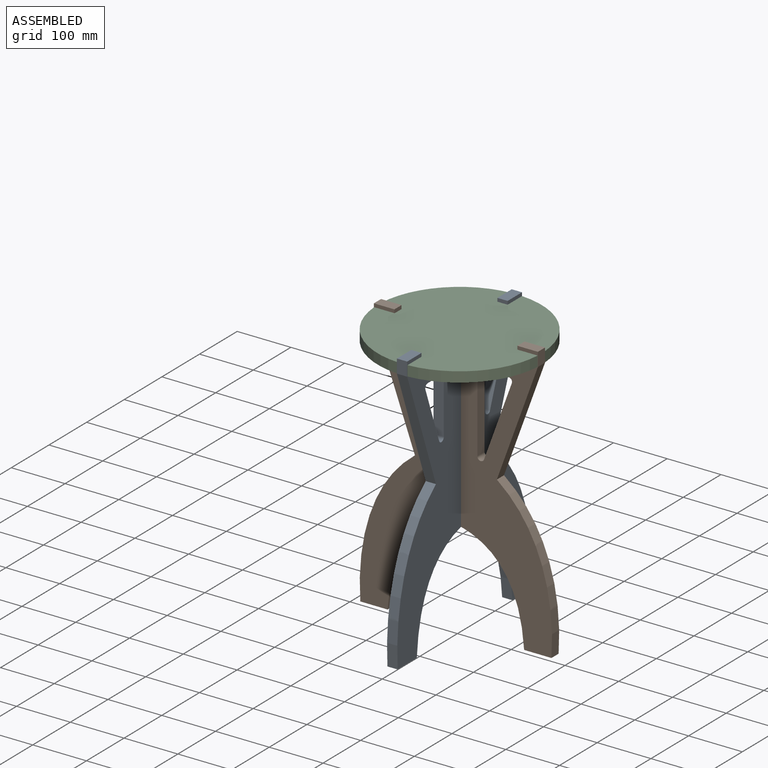
[diagram: assembled view]
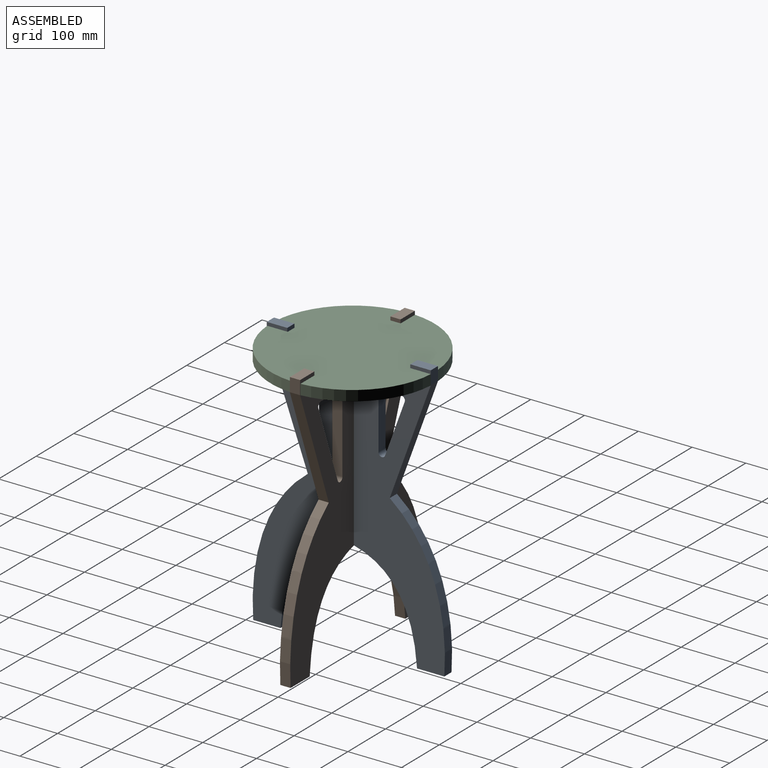
[diagram: assembled view, second angle]
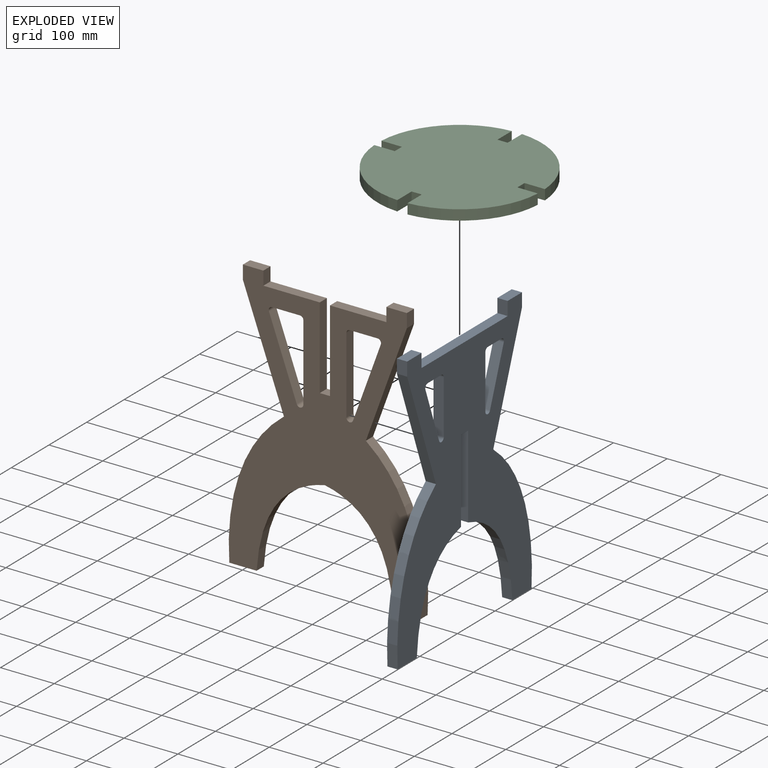
[diagram: exploded view]
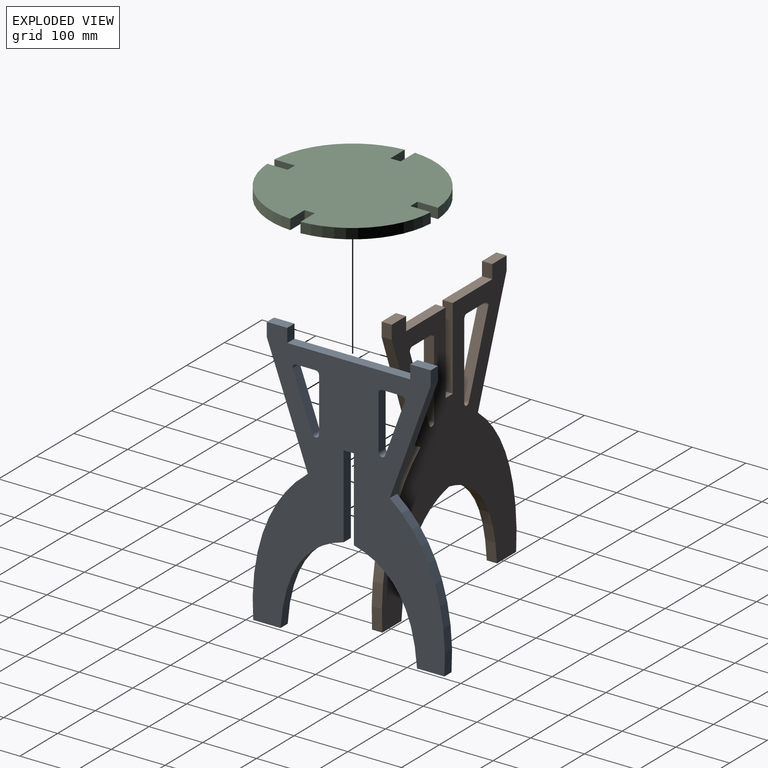
[diagram: exploded view, second angle]
ASSEMBLY  parts=3 mates=7
PART A: 32 faces, bbox 365.1x19.1x508 mm
  f0: plane 508x365.1mm, normal (0,-1,0), area 89085.1mm2, adj f2,f3,f4,f5,f6,f7,f8,f9
  f1: plane 508x365.1mm, normal (0,1,0), area 89085.1mm2, adj f2,f3,f4,f5,f6,f7,f8,f9
  f2: plane 228.85x19.05mm, normal (0,0,1), area 4359.7mm2, adj f0,f1,f3,f19
  f3: plane 25.4x19.05mm, normal (1,0,0), area 483.9mm2, adj f0,f1,f2,f4
  f4: plane 38.1x19.05mm, normal (0,0,1), area 725.8mm2, adj f0,f1,f3,f5
  f5: plane 25.4x19.05mm, normal (-1,0,0), area 483.9mm2, adj f0,f1,f4,f6
  f6: plane 209.71x76.33mm, normal (-0.94,0,-0.34), area 4251.3mm2, adj f0,f1,f5,f7
  f7: extruded ~272.89x102.68mm, area 5776.1mm2, adj f0,f1,f6,f8
  f8: plane 50.8x19.05mm, normal (0,0,-1), area 967.7mm2, adj f0,f1,f7,f9
  f9: extruded ~175.65x117.48mm, area 4340mm2, adj f0,f1,f8,f10
  f10: plane 154.55x19.05mm, normal (1,0,0), area 2944.1mm2, adj f0,f1,f9,f11
  f11: plane 19.05x19.05mm, normal (0,0,-1), area 362.9mm2, adj f0,f1,f10,f12
  f12: plane 154.55x19.05mm, normal (-1,0,0), area 2944.1mm2, adj f0,f1,f11,f13
  f13: extruded ~175.65x117.48mm, area 4340mm2, adj f0,f1,f12,f14
  f14: plane 50.8x19.05mm, normal (0,0,-1), area 967.7mm2, adj f0,f1,f13,f15
  f15: extruded ~272.89x102.68mm, area 5776.1mm2, adj f0,f1,f14,f16
  f16: plane 209.71x76.33mm, normal (0.94,0,-0.34), area 4251.3mm2, adj f0,f1,f15,f17
  f17: plane 25.4x19.05mm, normal (1,0,0), area 483.9mm2, adj f0,f1,f16,f18
  f18: plane 38.1x19.05mm, normal (0,0,1), area 725.8mm2, adj f0,f1,f17,f19
  f19: plane 25.4x19.05mm, normal (-1,0,0), area 483.9mm2, adj f0,f1,f2,f18
  f20: plane 100.32x36.52mm, normal (-0.94,0,0.34), area 2033.8mm2, adj f0,f1,f21,f25
  f21: cylinder r=6.35mm len=19.05mm, axis (0,-1,0), area 232.2mm2, adj f0,f1,f20,f22
  f22: plane 36.52x19.05mm, normal (0,0,-1), area 695.6mm2, adj f0,f1,f21,f23
  f23: cylinder r=6.35mm len=19.05mm, axis (0,-1,0), area 190mm2, adj f0,f1,f22,f24
  f24: plane 100.32x19.05mm, normal (1,0,0), area 1911.2mm2, adj f0,f1,f23,f25
  f25: cylinder r=6.35mm len=19.05mm, axis (0,-1,0), area 337.8mm2, adj f0,f1,f20,f24
  f26: plane 100.32x19.05mm, normal (-1,0,0), area 1911.2mm2, adj f0,f1,f27,f31
  f27: cylinder r=6.35mm len=19.05mm, axis (0,-1,0), area 190mm2, adj f0,f1,f26,f28
  f28: plane 36.52x19.05mm, normal (0,0,-1), area 695.6mm2, adj f0,f1,f27,f29
  f29: cylinder r=6.35mm len=19.05mm, axis (0,-1,0), area 232.2mm2, adj f0,f1,f28,f30
  f30: plane 100.32x36.52mm, normal (0.94,0,0.34), area 2033.8mm2, adj f0,f1,f29,f31
  f31: cylinder r=6.35mm len=19.05mm, axis (0,-1,0), area 337.8mm2, adj f0,f1,f26,f30
PART B: 33 faces, bbox 365.1x19.1x508 mm
  f0: plane 508x365.1mm, normal (0,-1,0), area 84115.8mm2, adj f2,f3,f4,f5,f6,f7,f8,f9
  f1: plane 508x365.1mm, normal (0,1,0), area 84115.8mm2, adj f2,f3,f4,f5,f6,f7,f8,f9
  f2: plane 152.4x19.05mm, normal (1,0,0), area 2903.2mm2, adj f0,f1,f3,f20
  f3: plane 104.9x19.05mm, normal (0,0,1), area 1998.4mm2, adj f0,f1,f2,f4
  f4: plane 25.4x19.05mm, normal (1,0,0), area 483.9mm2, adj f0,f1,f3,f5
  f5: plane 38.1x19.05mm, normal (0,0,1), area 725.8mm2, adj f0,f1,f4,f6
  f6: plane 25.4x19.05mm, normal (-1,0,0), area 483.9mm2, adj f0,f1,f5,f7
  f7: plane 209.71x76.33mm, normal (-0.94,0,-0.34), area 4251.3mm2, adj f0,f1,f6,f8
  f8: extruded ~272.89x102.68mm, area 5776.1mm2, adj f0,f1,f7,f9
  f9: plane 50.8x19.05mm, normal (0,0,-1), area 967.7mm2, adj f0,f1,f8,f10
  f10: extruded ~177.8x127mm, area 4526mm2, adj f0,f1,f9,f11
  f11: extruded ~177.8x127mm, area 4526mm2, adj f0,f1,f10,f12
  f12: plane 50.8x19.05mm, normal (0,0,-1), area 967.7mm2, adj f0,f1,f11,f13
  f13: extruded ~272.89x102.68mm, area 5776.1mm2, adj f0,f1,f12,f14
  f14: plane 209.71x76.33mm, normal (0.94,0,-0.34), area 4251.3mm2, adj f0,f1,f13,f15
  f15: plane 25.4x19.05mm, normal (1,0,0), area 483.9mm2, adj f0,f1,f14,f16
  f16: plane 38.1x19.05mm, normal (0,0,1), area 725.8mm2, adj f0,f1,f15,f17
  f17: plane 25.4x19.05mm, normal (-1,0,0), area 483.9mm2, adj f0,f1,f16,f18
  f18: plane 104.9x19.05mm, normal (0,0,1), area 1998.4mm2, adj f0,f1,f17,f19
  f19: plane 152.4x19.05mm, normal (-1,0,0), area 2903.2mm2, adj f0,f1,f18,f20
  f20: plane 19.05x19.05mm, normal (0,0,1), area 362.9mm2, adj f0,f1,f2,f19
  f21: plane 142.21x51.76mm, normal (-0.94,0,0.34), area 2882.9mm2, adj f0,f1,f22,f26
  f22: cylinder r=6.35mm len=19.05mm, axis (0,-1,0), area 232.2mm2, adj f0,f1,f21,f23
  f23: plane 51.76x19.05mm, normal (0,0,-1), area 986mm2, adj f0,f1,f22,f24
  f24: cylinder r=6.35mm len=19.05mm, axis (0,-1,0), area 190mm2, adj f0,f1,f23,f25
  f25: plane 142.21x19.05mm, normal (1,0,0), area 2709.1mm2, adj f0,f1,f24,f26
  f26: cylinder r=6.35mm len=19.05mm, axis (0,-1,0), area 337.8mm2, adj f0,f1,f21,f25
  f27: plane 142.21x19.05mm, normal (-1,0,0), area 2709.1mm2, adj f0,f1,f28,f32
  f28: cylinder r=6.35mm len=19.05mm, axis (0,-1,0), area 190mm2, adj f0,f1,f27,f29
  f29: plane 51.76x19.05mm, normal (0,0,-1), area 986mm2, adj f0,f1,f28,f30
  f30: cylinder r=6.35mm len=19.05mm, axis (0,-1,0), area 232.2mm2, adj f0,f1,f29,f31
  f31: plane 142.21x51.76mm, normal (0.94,0,0.34), area 2882.9mm2, adj f0,f1,f30,f32
  f32: cylinder r=6.35mm len=19.05mm, axis (0,-1,0), area 337.8mm2, adj f0,f1,f27,f31
PART C: 18 faces, bbox 304.2x304.2x19.1 mm
  f0: cylinder r=152.4mm len=142.58mm, axis (0,0,-1), area 4197.2mm2, adj f4,f5,f13,f17
  f1: cylinder r=152.4mm len=142.58mm, axis (0,0,-1), area 4197.2mm2, adj f4,f5,f10,f14
  f2: cylinder r=152.4mm len=142.58mm, axis (0,0,-1), area 4197.2mm2, adj f4,f5,f7,f11
  f3: cylinder r=152.4mm len=142.58mm, axis (0,0,-1), area 4197.2mm2, adj f4,f5,f8,f16
  f4: plane 304.2x304.2mm, normal (0,0,1), area 70047.5mm2, adj f0,f1,f2,f3,f6,f7,f8,f9
  f5: plane 304.2x304.2mm, normal (0,0,-1), area 70047.5mm2, adj f0,f1,f2,f3,f6,f7,f8,f9
  f6: plane 19.05x19.05mm, normal (1,0,0), area 362.9mm2, adj f4,f5,f7,f8
  f7: plane 38.1x19.05mm, normal (0,-1,0), area 725.8mm2, adj f2,f4,f5,f6
  f8: plane 38.1x19.05mm, normal (0,1,0), area 725.8mm2, adj f3,f4,f5,f6
  f9: plane 19.05x19.05mm, normal (0,1,0), area 362.9mm2, adj f4,f5,f10,f11
  f10: plane 38.1x19.05mm, normal (1,0,0), area 725.8mm2, adj f1,f4,f5,f9
  f11: plane 38.1x19.05mm, normal (-1,0,0), area 725.8mm2, adj f2,f4,f5,f9
  f12: plane 19.05x19.05mm, normal (-1,0,0), area 362.9mm2, adj f4,f5,f13,f14
  f13: plane 38.1x19.05mm, normal (0,1,0), area 725.8mm2, adj f0,f4,f5,f12
  f14: plane 38.1x19.05mm, normal (0,-1,0), area 725.8mm2, adj f1,f4,f5,f12
  f15: plane 19.05x19.05mm, normal (0,-1,0), area 362.9mm2, adj f4,f5,f16,f17
  f16: plane 38.1x19.05mm, normal (-1,0,0), area 725.8mm2, adj f3,f4,f5,f15
  f17: plane 38.1x19.05mm, normal (1,0,0), area 725.8mm2, adj f0,f4,f5,f15
PLACE A rot(axis=(0,0,-1),90deg) t=(12.84,0.67,-255.87)mm
PLACE B t=(3.32,10.19,-255.87)mm fixed
PLACE C t=(3.32,1.09,226.73)mm
MATE planar C.f0 <-> A.f2  axis (0,0,-1) through (3.32,1.09,226.73)mm
MATE planar C.f10 <-> A.f0  axis (1,0,0) through (-6.21,134.15,236.25)mm
MATE planar B.f0 <-> A.f12  axis (0,-1,0) through (3.32,-8.86,-0.53)mm
MATE planar C.f9 <-> A.f3  axis (0,1,0) through (3.32,115.1,236.25)mm
MATE planar C.f11 <-> A.f1  axis (-1,0,0) through (12.84,134.15,236.25)mm
MATE planar B.f20 <-> A.f11  axis (0,0,1) through (3.32,0.67,74.33)mm
MATE planar A.f1 <-> B.f19  axis (1,0,0) through (12.84,0.67,10.96)mm
